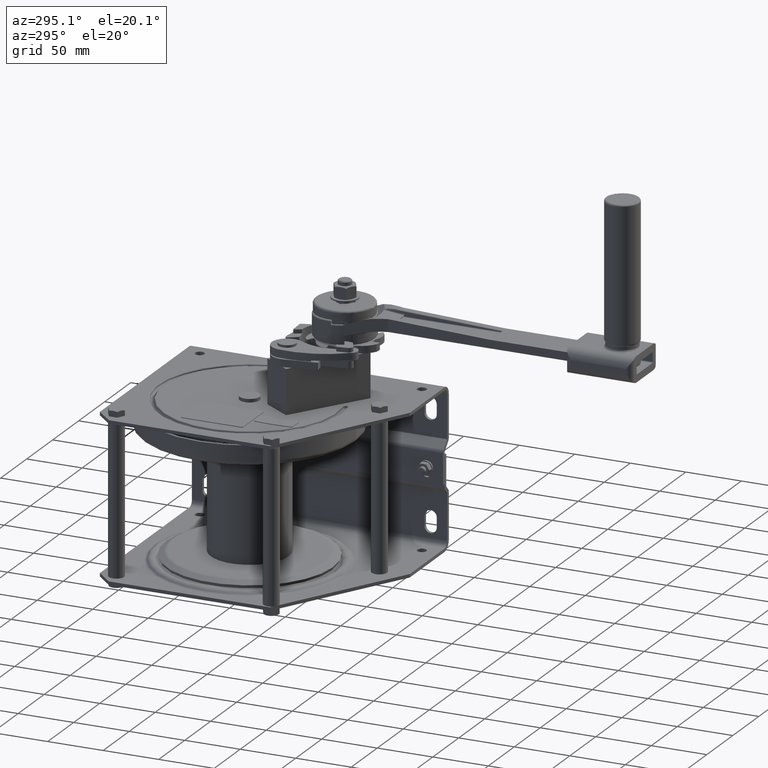
[diagram: clean part render]
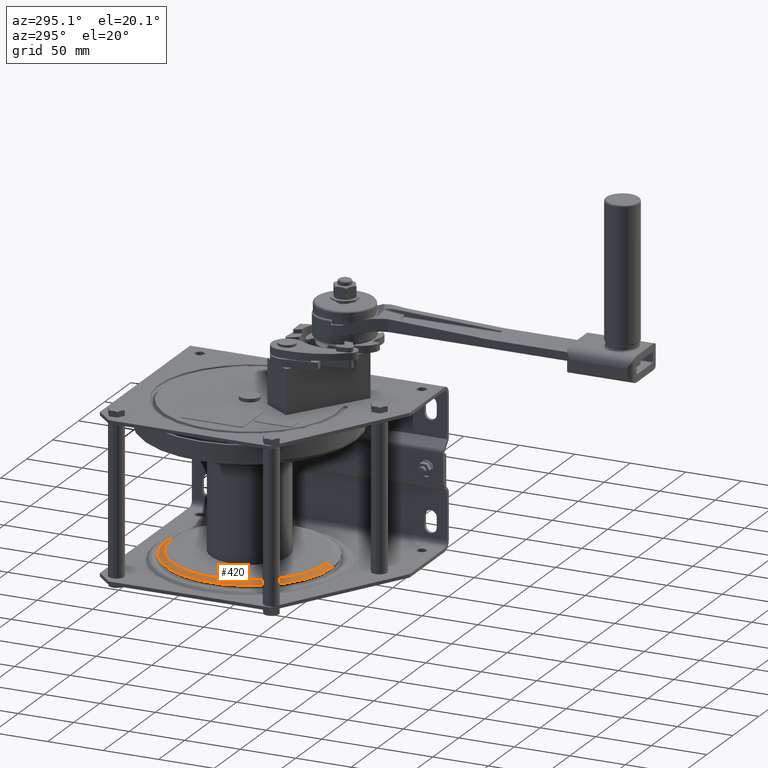
[diagram: same view with one face highlighted and labeled with its STEP entity id]
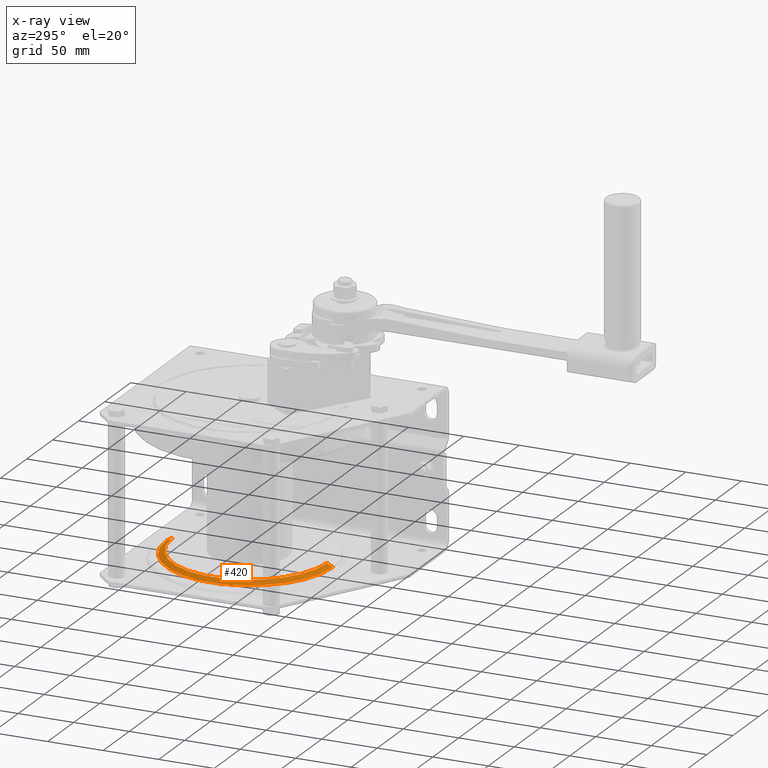
[diagram: x-ray of the same camera — body ghosted, the highlighted face saturated]
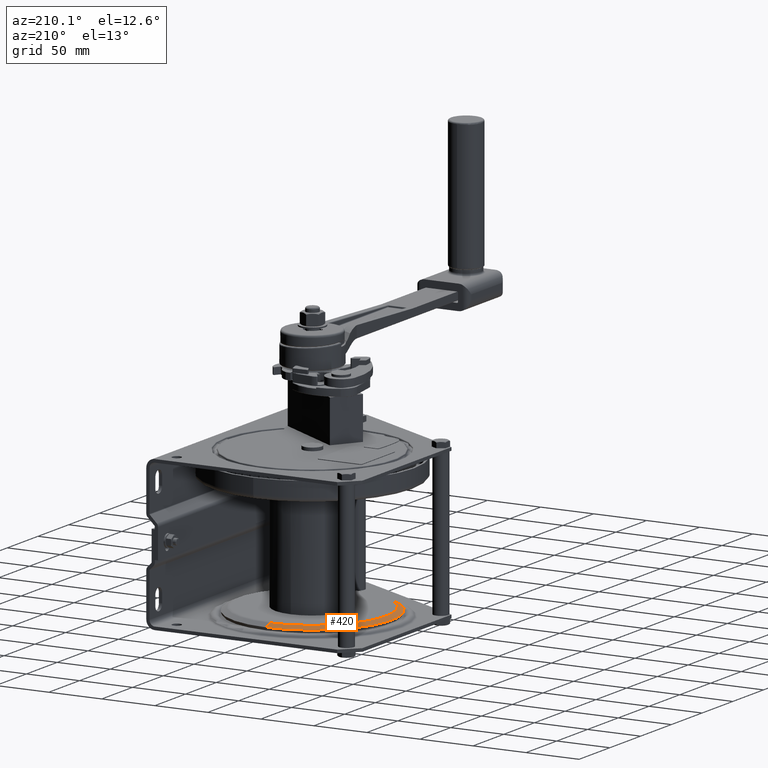
[diagram: same view with one face highlighted and labeled with its STEP entity id]
A machine part, auxiliary view. The second image highlights one B-rep face of the part: STEP entity #420.
The next image is the same camera in x-ray: the body ghosted, the highlighted face saturated — about 0% of this face is hidden behind the body in this view.
A second angle (auxiliary view) of the same face is appended — the face is thin or edge-on in the first view.
In plain terms, the highlighted conical surface has half-angle 62.819 deg.
Its self-contained STEP definition (entity closure, byte-faithful):
#10=CARTESIAN_POINT('',(-35.7406092240885,-260.918201438849,0.));
#20=DIRECTION('',(1.,0.,0.));
#30=DIRECTION('',(0.,-1.,0.));
#40=AXIS2_PLACEMENT_3D('',#10,#20,#30);
#50=CONICAL_SURFACE('',#40,75.,1.09640219165229);
#60=CARTESIAN_POINT('',(-35.7406092240885,-185.918201438849,
-9.18485099360515E-15));
#70=DIRECTION('',(0.456799572065833,0.889569643681973,
-1.08940861675378E-16));
#80=VECTOR('',#70,84.310430928793);
#90=LINE('',#60,#80);
#100=CARTESIAN_POINT('',(-38.512873356293,-191.316897425197,0.));
#110=VERTEX_POINT('',#100);
#120=CARTESIAN_POINT('',(-35.7406092240885,-185.918201438849,
-9.18485099360515E-15));
#130=VERTEX_POINT('',#120);
#140=EDGE_CURVE('',#110,#130,#90,.T.);
#150=ORIENTED_EDGE('',*,*,#140,.F.);
#160=CARTESIAN_POINT('',(-35.7406092240885,-260.918201438849,0.));
#170=DIRECTION('',(1.,0.,0.));
#180=DIRECTION('',(0.,1.,0.));
#190=AXIS2_PLACEMENT_3D('',#160,#170,#180);
#200=CIRCLE('',#190,75.);
#210=CARTESIAN_POINT('',(-35.7406092240885,-335.918201438849,0.));
#220=VERTEX_POINT('',#210);
#230=EDGE_CURVE('',#130,#220,#200,.T.);
#240=ORIENTED_EDGE('',*,*,#230,.F.);
#250=CARTESIAN_POINT('',(-35.7406092240885,-335.918201438849,0.));
#260=DIRECTION('',(0.456799572065833,-0.889569643681973,0.));
#270=VECTOR('',#260,84.310430928793);
#280=LINE('',#250,#270);
#290=CARTESIAN_POINT('',(-38.5128733562929,-330.519505452501,0.));
#300=VERTEX_POINT('',#290);
#310=EDGE_CURVE('',#300,#220,#280,.T.);
#320=ORIENTED_EDGE('',*,*,#310,.T.);
#330=CARTESIAN_POINT('',(-38.512873356293,-260.918201438849,0.));
#340=DIRECTION('',(1.,0.,0.));
#350=DIRECTION('',(0.,1.,0.));
#360=AXIS2_PLACEMENT_3D('',#330,#340,#350);
#370=CIRCLE('',#360,69.6013040136517);
#380=EDGE_CURVE('',#110,#300,#370,.T.);
#390=ORIENTED_EDGE('',*,*,#380,.T.);
#400=EDGE_LOOP('',(#390,#320,#240,#150));
#410=FACE_OUTER_BOUND('',#400,.T.);
#420=ADVANCED_FACE('',(#410),#50,.T.);